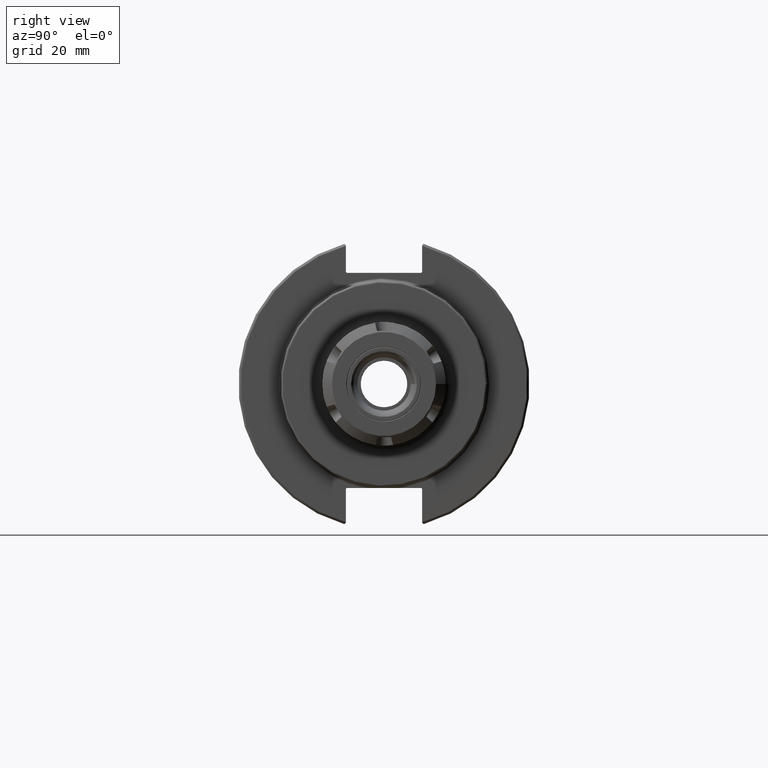
[diagram: clean part render]
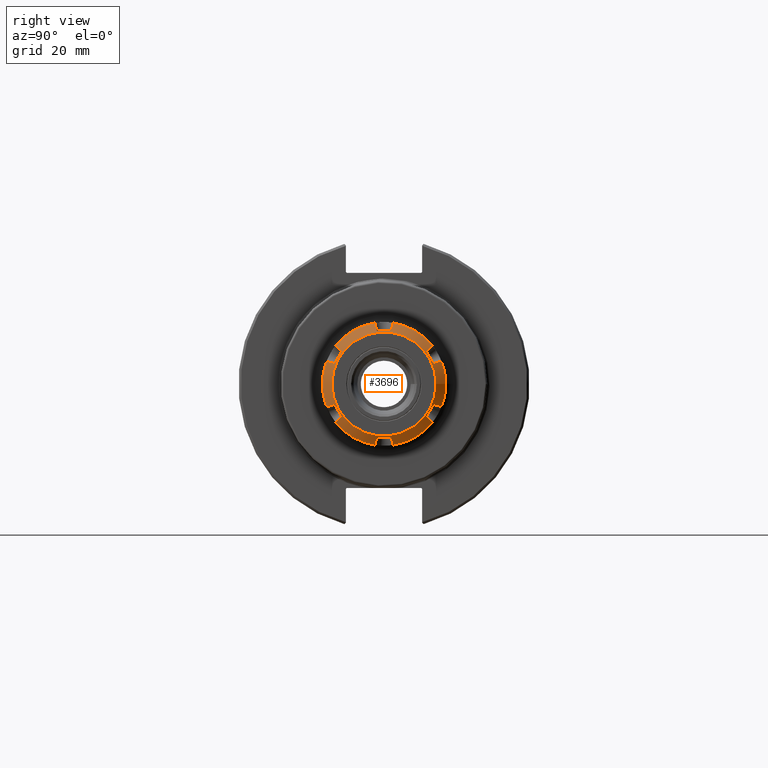
[diagram: same view with one face highlighted and labeled with its STEP entity id]
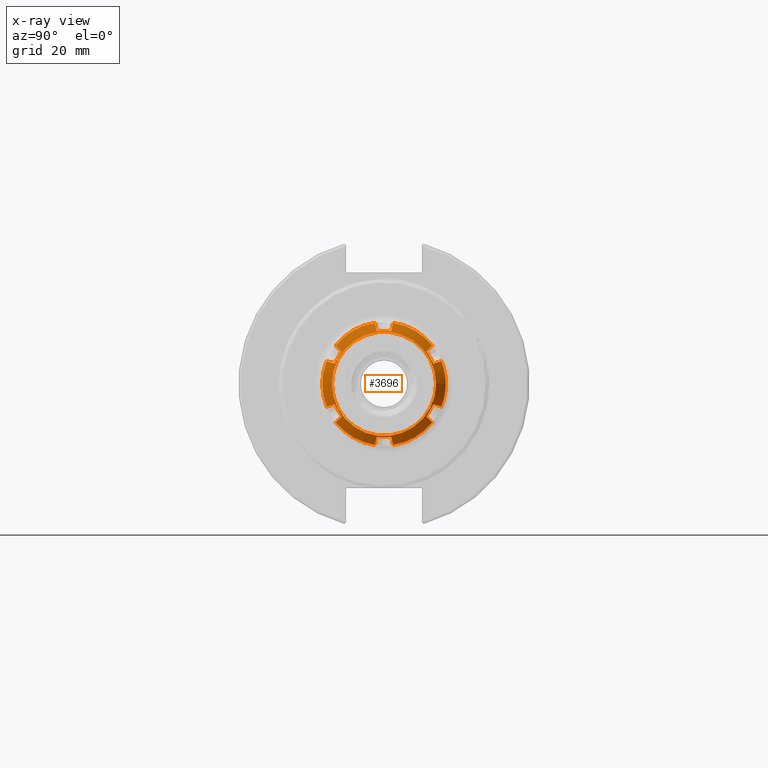
[diagram: x-ray of the same camera — body ghosted, the highlighted face saturated]
A machine part, right view. The second image highlights one B-rep face of the part: STEP entity #3696.
The next image is the same camera in x-ray: the body ghosted, the highlighted face saturated — about 0% of this face is hidden behind the body in this view.
In plain terms, the highlighted conical surface has half-angle 55 deg.
Its self-contained STEP definition (entity closure, byte-faithful):
#2644=CARTESIAN_POINT('',(0.013488532245051,0.658413935071814,-0.271593612044263));
#2645=VERTEX_POINT('',#2644);
#2646=CARTESIAN_POINT('',(0.013488532245051,0.564413935071814,-0.434406387955737));
#2647=VERTEX_POINT('',#2646);
#2648=CARTESIAN_POINT('',(0.013488532245051,0.658413935071814,-0.271593612044263));
#2649=CARTESIAN_POINT('',(0.004801687822576,0.611413935071814,-0.353));
#2650=CARTESIAN_POINT('',(0.013488532245051,0.564413935071814,-0.434406387955737));
#2658=(BOUNDED_CURVE()B_SPLINE_CURVE(2,(#2648,#2649,#2650),.UNSPECIFIED.,.F.,.U.)B_SPLINE_CURVE_WITH_KNOTS((3,3),(0.82459648433292,1.3483544344432),.UNSPECIFIED.)CURVE()GEOMETRIC_REPRESENTATION_ITEM()RATIONAL_B_SPLINE_CURVE((1.077046513658623,1.086551220052426,1.077046513658623))REPRESENTATION_ITEM(''));
#2659=EDGE_CURVE('',#2645,#2647,#2658,.T.);
#2692=CARTESIAN_POINT('',(0.09,0.643444973152068,-0.510725774291189));
#2693=VERTEX_POINT('',#2692);
#2694=CARTESIAN_POINT('',(0.013488532245051,0.564413935071814,-0.434406387955737));
#2695=CARTESIAN_POINT('',(0.048988927489935,0.601114194534895,-0.469847416551742));
#2696=CARTESIAN_POINT('',(0.09,0.643444973152068,-0.510725774291189));
#2704=(BOUNDED_CURVE()B_SPLINE_CURVE(2,(#2694,#2695,#2696),.UNSPECIFIED.,.F.,.U.)B_SPLINE_CURVE_WITH_KNOTS((3,3),(0.0,0.340061883942787),.UNSPECIFIED.)CURVE()GEOMETRIC_REPRESENTATION_ITEM()RATIONAL_B_SPLINE_CURVE((1.0,1.00257557690847,1.0))REPRESENTATION_ITEM(''));
#2705=EDGE_CURVE('',#2647,#2693,#2704,.T.);
#2769=CARTESIAN_POINT('',(0.09,0.764023981479681,-0.301876805541493));
#2770=VERTEX_POINT('',#2769);
#2771=CARTESIAN_POINT('',(0.09,0.764023981479681,-0.301876805541493));
#2772=CARTESIAN_POINT('',(0.048988927498252,0.707456895915225,-0.285656454770061));
#2773=CARTESIAN_POINT('',(0.013488532245051,0.658413935071814,-0.271593612044263));
#2781=(BOUNDED_CURVE()B_SPLINE_CURVE(2,(#2771,#2772,#2773),.UNSPECIFIED.,.F.,.U.)B_SPLINE_CURVE_WITH_KNOTS((3,3),(0.0,0.340061883942787),.UNSPECIFIED.)CURVE()GEOMETRIC_REPRESENTATION_ITEM()RATIONAL_B_SPLINE_CURVE((1.0,1.002575576871101,1.0))REPRESENTATION_ITEM(''));
#2782=EDGE_CURVE('',#2770,#2645,#2781,.T.);
#2800=CARTESIAN_POINT('',(0.013488532245051,0.094,-0.706));
#2801=VERTEX_POINT('',#2800);
#2802=CARTESIAN_POINT('',(0.013488532245051,-0.094,-0.706));
#2803=VERTEX_POINT('',#2802);
#2804=CARTESIAN_POINT('',(0.013488532245051,0.094,-0.706));
#2805=CARTESIAN_POINT('',(0.004801687822576,1.857657E-016,-0.706));
#2806=CARTESIAN_POINT('',(0.013488532245051,-0.094,-0.706));
#2814=(BOUNDED_CURVE()B_SPLINE_CURVE(2,(#2804,#2805,#2806),.UNSPECIFIED.,.F.,.U.)B_SPLINE_CURVE_WITH_KNOTS((3,3),(0.82459648433292,1.348354434443201),.UNSPECIFIED.)CURVE()GEOMETRIC_REPRESENTATION_ITEM()RATIONAL_B_SPLINE_CURVE((1.077046513658622,1.086551220052426,1.077046513658622))REPRESENTATION_ITEM(''));
#2815=EDGE_CURVE('',#2801,#2803,#2814,.T.);
#2848=CARTESIAN_POINT('',(0.09,-0.120579008327613,-0.812602579832681));
#2849=VERTEX_POINT('',#2848);
#2850=CARTESIAN_POINT('',(0.013488532245051,-0.094,-0.706));
#2851=CARTESIAN_POINT('',(0.048988927495278,-0.106342701370706,-0.755503871325955));
#2852=CARTESIAN_POINT('',(0.09,-0.120579008327613,-0.812602579832681));
#2860=(BOUNDED_CURVE()B_SPLINE_CURVE(2,(#2850,#2851,#2852),.UNSPECIFIED.,.F.,.U.)B_SPLINE_CURVE_WITH_KNOTS((3,3),(0.0,0.340061883942787),.UNSPECIFIED.)CURVE()GEOMETRIC_REPRESENTATION_ITEM()RATIONAL_B_SPLINE_CURVE((1.0,1.002575576888377,1.0))REPRESENTATION_ITEM(''));
#2861=EDGE_CURVE('',#2803,#2849,#2860,.T.);
#2925=CARTESIAN_POINT('',(0.09,0.120579008327613,-0.812602579832682));
#2926=VERTEX_POINT('',#2925);
#2927=CARTESIAN_POINT('',(0.09,0.120579008327613,-0.812602579832681));
#2928=CARTESIAN_POINT('',(0.048988927497536,0.106342701371491,-0.755503871329102));
#2929=CARTESIAN_POINT('',(0.013488532245051,0.094,-0.706));
#2937=(BOUNDED_CURVE()B_SPLINE_CURVE(2,(#2927,#2928,#2929),.UNSPECIFIED.,.F.,.U.)B_SPLINE_CURVE_WITH_KNOTS((3,3),(0.0,0.340061883942787),.UNSPECIFIED.)CURVE()GEOMETRIC_REPRESENTATION_ITEM()RATIONAL_B_SPLINE_CURVE((1.0,1.002575576879469,1.0))REPRESENTATION_ITEM(''));
#2938=EDGE_CURVE('',#2926,#2801,#2937,.T.);
#2956=CARTESIAN_POINT('',(0.013488532245051,-0.564413935071814,-0.434406387955737));
#2957=VERTEX_POINT('',#2956);
#2958=CARTESIAN_POINT('',(0.013488532245051,-0.658413935071814,-0.271593612044263));
#2959=VERTEX_POINT('',#2958);
#2960=CARTESIAN_POINT('',(0.013488532245051,-0.564413935071814,-0.434406387955737));
#2961=CARTESIAN_POINT('',(0.004801687822576,-0.611413935071814,-0.353));
#2962=CARTESIAN_POINT('',(0.013488532245051,-0.658413935071814,-0.271593612044263));
#2970=(BOUNDED_CURVE()B_SPLINE_CURVE(2,(#2960,#2961,#2962),.UNSPECIFIED.,.F.,.U.)B_SPLINE_CURVE_WITH_KNOTS((3,3),(0.824596484332921,1.348354434443202),.UNSPECIFIED.)CURVE()GEOMETRIC_REPRESENTATION_ITEM()RATIONAL_B_SPLINE_CURVE((1.077046513658622,1.086551220052425,1.077046513658622))REPRESENTATION_ITEM(''));
#2971=EDGE_CURVE('',#2957,#2959,#2970,.T.);
#3004=CARTESIAN_POINT('',(0.09,-0.764023981479681,-0.301876805541492));
#3005=VERTEX_POINT('',#3004);
#3006=CARTESIAN_POINT('',(0.013488532245051,-0.658413935071814,-0.271593612044263));
#3007=CARTESIAN_POINT('',(0.048988927492729,-0.707456895907601,-0.285656454767875));
#3008=CARTESIAN_POINT('',(0.09,-0.764023981479681,-0.301876805541492));
#3016=(BOUNDED_CURVE()B_SPLINE_CURVE(2,(#3006,#3007,#3008),.UNSPECIFIED.,.F.,.U.)B_SPLINE_CURVE_WITH_KNOTS((3,3),(0.0,0.340061883942787),.UNSPECIFIED.)CURVE()GEOMETRIC_REPRESENTATION_ITEM()RATIONAL_B_SPLINE_CURVE((1.0,1.002575576897637,1.0))REPRESENTATION_ITEM(''));
#3017=EDGE_CURVE('',#2959,#3005,#3016,.T.);
#3081=CARTESIAN_POINT('',(0.09,-0.643444973152068,-0.510725774291189));
#3082=VERTEX_POINT('',#3081);
#3083=CARTESIAN_POINT('',(0.09,-0.643444973152068,-0.510725774291189));
#3084=CARTESIAN_POINT('',(0.048988927482105,-0.601114194526807,-0.469847416543931));
#3085=CARTESIAN_POINT('',(0.013488532245051,-0.564413935071814,-0.434406387955737));
#3093=(BOUNDED_CURVE()B_SPLINE_CURVE(2,(#3083,#3084,#3085),.UNSPECIFIED.,.F.,.U.)B_SPLINE_CURVE_WITH_KNOTS((3,3),(0.0,0.340061883942787),.UNSPECIFIED.)CURVE()GEOMETRIC_REPRESENTATION_ITEM()RATIONAL_B_SPLINE_CURVE((1.0,1.002575576943949,1.0))REPRESENTATION_ITEM(''));
#3094=EDGE_CURVE('',#3082,#2957,#3093,.T.);
#3112=CARTESIAN_POINT('',(0.013488532245051,-0.658413935071814,0.271593612044263));
#3113=VERTEX_POINT('',#3112);
#3114=CARTESIAN_POINT('',(0.013488532245051,-0.564413935071814,0.434406387955737));
#3115=VERTEX_POINT('',#3114);
#3116=CARTESIAN_POINT('',(0.013488532245051,-0.658413935071814,0.271593612044263));
#3117=CARTESIAN_POINT('',(0.004801687822576,-0.611413935071814,0.353));
#3118=CARTESIAN_POINT('',(0.013488532245051,-0.564413935071814,0.434406387955737));
#3126=(BOUNDED_CURVE()B_SPLINE_CURVE(2,(#3116,#3117,#3118),.UNSPECIFIED.,.F.,.U.)B_SPLINE_CURVE_WITH_KNOTS((3,3),(0.824596484332921,1.348354434443201),.UNSPECIFIED.)CURVE()GEOMETRIC_REPRESENTATION_ITEM()RATIONAL_B_SPLINE_CURVE((1.077046513658621,1.086551220052424,1.07704651365862))REPRESENTATION_ITEM(''));
#3127=EDGE_CURVE('',#3113,#3115,#3126,.T.);
#3160=CARTESIAN_POINT('',(0.09,-0.643444973152068,0.510725774291189));
#3161=VERTEX_POINT('',#3160);
#3162=CARTESIAN_POINT('',(0.013488532245051,-0.564413935071814,0.434406387955737));
#3163=CARTESIAN_POINT('',(0.048988927492239,-0.601114194537275,0.46984741655404));
#3164=CARTESIAN_POINT('',(0.09,-0.643444973152068,0.510725774291189));
#3172=(BOUNDED_CURVE()B_SPLINE_CURVE(2,(#3162,#3163,#3164),.UNSPECIFIED.,.F.,.U.)B_SPLINE_CURVE_WITH_KNOTS((3,3),(0.0,0.340061883942787),.UNSPECIFIED.)CURVE()GEOMETRIC_REPRESENTATION_ITEM()RATIONAL_B_SPLINE_CURVE((1.0,1.002575576900996,1.0))REPRESENTATION_ITEM(''));
#3173=EDGE_CURVE('',#3115,#3161,#3172,.T.);
#3237=CARTESIAN_POINT('',(0.09,-0.764023981479681,0.301876805541492));
#3238=VERTEX_POINT('',#3237);
#3239=CARTESIAN_POINT('',(0.09,-0.764023981479681,0.301876805541492));
#3240=CARTESIAN_POINT('',(0.04898892750456,-0.707456895923934,0.285656454772558));
#3241=CARTESIAN_POINT('',(0.013488532245051,-0.658413935071814,0.271593612044263));
#3249=(BOUNDED_CURVE()B_SPLINE_CURVE(2,(#3239,#3240,#3241),.UNSPECIFIED.,.F.,.U.)B_SPLINE_CURVE_WITH_KNOTS((3,3),(0.0,0.340061883942787),.UNSPECIFIED.)CURVE()GEOMETRIC_REPRESENTATION_ITEM()RATIONAL_B_SPLINE_CURVE((1.0,1.002575576858716,1.0))REPRESENTATION_ITEM(''));
#3250=EDGE_CURVE('',#3238,#3113,#3249,.T.);
#3268=CARTESIAN_POINT('',(0.013488532245051,0.564413935071814,0.434406387955737));
#3269=VERTEX_POINT('',#3268);
#3270=CARTESIAN_POINT('',(0.013488532245051,0.658413935071814,0.271593612044262));
#3271=VERTEX_POINT('',#3270);
#3272=CARTESIAN_POINT('',(0.013488532245051,0.564413935071814,0.434406387955737));
#3273=CARTESIAN_POINT('',(0.004801687822576,0.611413935071814,0.353));
#3274=CARTESIAN_POINT('',(0.013488532245051,0.658413935071814,0.271593612044262));
#3282=(BOUNDED_CURVE()B_SPLINE_CURVE(2,(#3272,#3273,#3274),.UNSPECIFIED.,.F.,.U.)B_SPLINE_CURVE_WITH_KNOTS((3,3),(0.82459648433292,1.3483544344432),.UNSPECIFIED.)CURVE()GEOMETRIC_REPRESENTATION_ITEM()RATIONAL_B_SPLINE_CURVE((1.077046513658621,1.086551220052425,1.077046513658621))REPRESENTATION_ITEM(''));
#3283=EDGE_CURVE('',#3269,#3271,#3282,.T.);
#3316=CARTESIAN_POINT('',(0.09,0.764023981479681,0.301876805541492));
#3317=VERTEX_POINT('',#3316);
#3318=CARTESIAN_POINT('',(0.013488532245051,0.658413935071814,0.271593612044262));
#3319=CARTESIAN_POINT('',(0.048988927503607,0.707456895922618,0.28565645477218));
#3320=CARTESIAN_POINT('',(0.09,0.764023981479681,0.301876805541492));
#3328=(BOUNDED_CURVE()B_SPLINE_CURVE(2,(#3318,#3319,#3320),.UNSPECIFIED.,.F.,.U.)B_SPLINE_CURVE_WITH_KNOTS((3,3),(0.0,0.340061883942786),.UNSPECIFIED.)CURVE()GEOMETRIC_REPRESENTATION_ITEM()RATIONAL_B_SPLINE_CURVE((1.0,1.002575576856022,1.0))REPRESENTATION_ITEM(''));
#3329=EDGE_CURVE('',#3271,#3317,#3328,.T.);
#3393=CARTESIAN_POINT('',(0.09,0.643444973152068,0.510725774291189));
#3394=VERTEX_POINT('',#3393);
#3395=CARTESIAN_POINT('',(0.09,0.643444973152068,0.510725774291189));
#3396=CARTESIAN_POINT('',(0.048988927489963,0.601114194534924,0.469847416551769));
#3397=CARTESIAN_POINT('',(0.013488532245051,0.564413935071814,0.434406387955737));
#3405=(BOUNDED_CURVE()B_SPLINE_CURVE(2,(#3395,#3396,#3397),.UNSPECIFIED.,.F.,.U.)B_SPLINE_CURVE_WITH_KNOTS((3,3),(0.0,0.340061883942787),.UNSPECIFIED.)CURVE()GEOMETRIC_REPRESENTATION_ITEM()RATIONAL_B_SPLINE_CURVE((1.0,1.002575576920623,1.0))REPRESENTATION_ITEM(''));
#3406=EDGE_CURVE('',#3394,#3269,#3405,.T.);
#3438=CARTESIAN_POINT('',(0.09,0.0,0.0));
#3439=DIRECTION('',(1.0,0.0,0.0));
#3440=DIRECTION('',(0.0,1.0,0.0));
#3441=AXIS2_PLACEMENT_3D('',#3438,#3439,#3440);
#3442=CIRCLE('',#3441,0.8215);
#3443=EDGE_CURVE('',#2770,#3317,#3442,.T.);
#3448=CARTESIAN_POINT('',(0.09,0.120579008327613,0.812602579832681));
#3449=VERTEX_POINT('',#3448);
#3450=CARTESIAN_POINT('',(0.09,0.0,0.0));
#3451=DIRECTION('',(1.0,0.0,0.0));
#3452=DIRECTION('',(0.0,1.0,0.0));
#3453=AXIS2_PLACEMENT_3D('',#3450,#3451,#3452);
#3454=CIRCLE('',#3453,0.8215);
#3455=EDGE_CURVE('',#3394,#3449,#3454,.T.);
#3488=CARTESIAN_POINT('',(0.09,-0.120579008327613,0.812602579832682));
#3489=VERTEX_POINT('',#3488);
#3496=CARTESIAN_POINT('',(0.09,0.0,0.0));
#3497=DIRECTION('',(1.0,0.0,0.0));
#3498=DIRECTION('',(0.0,1.0,0.0));
#3499=AXIS2_PLACEMENT_3D('',#3496,#3497,#3498);
#3500=CIRCLE('',#3499,0.8215);
#3501=EDGE_CURVE('',#3489,#3161,#3500,.T.);
#3506=CARTESIAN_POINT('',(0.09,0.0,0.0));
#3507=DIRECTION('',(1.0,0.0,0.0));
#3508=DIRECTION('',(0.0,1.0,0.0));
#3509=AXIS2_PLACEMENT_3D('',#3506,#3507,#3508);
#3510=CIRCLE('',#3509,0.8215);
#3511=EDGE_CURVE('',#3238,#3005,#3510,.T.);
#3516=CARTESIAN_POINT('',(0.09,0.0,0.0));
#3517=DIRECTION('',(1.0,0.0,0.0));
#3518=DIRECTION('',(0.0,1.0,0.0));
#3519=AXIS2_PLACEMENT_3D('',#3516,#3517,#3518);
#3520=CIRCLE('',#3519,0.8215);
#3521=EDGE_CURVE('',#3082,#2849,#3520,.T.);
#3526=CARTESIAN_POINT('',(0.09,0.0,0.0));
#3527=DIRECTION('',(1.0,0.0,0.0));
#3528=DIRECTION('',(0.0,1.0,0.0));
#3529=AXIS2_PLACEMENT_3D('',#3526,#3527,#3528);
#3530=CIRCLE('',#3529,0.8215);
#3531=EDGE_CURVE('',#2926,#2693,#3530,.T.);
#3541=CARTESIAN_POINT('',(0.013488532245051,-0.094,0.706));
#3542=VERTEX_POINT('',#3541);
#3543=CARTESIAN_POINT('',(0.013488532245051,0.094,0.706));
#3544=VERTEX_POINT('',#3543);
#3545=CARTESIAN_POINT('',(0.013488532245051,-0.094,0.706));
#3546=CARTESIAN_POINT('',(0.004801687822575,-1.966931E-016,0.706));
#3547=CARTESIAN_POINT('',(0.013488532245051,0.094,0.706));
#3555=(BOUNDED_CURVE()B_SPLINE_CURVE(2,(#3545,#3546,#3547),.UNSPECIFIED.,.F.,.U.)B_SPLINE_CURVE_WITH_KNOTS((3,3),(0.824596484332919,1.348354434443201),.UNSPECIFIED.)CURVE()GEOMETRIC_REPRESENTATION_ITEM()RATIONAL_B_SPLINE_CURVE((1.077046513658623,1.086551220052426,1.077046513658622))REPRESENTATION_ITEM(''));
#3556=EDGE_CURVE('',#3542,#3544,#3555,.T.);
#3589=CARTESIAN_POINT('',(0.013488532245051,0.094,0.706));
#3590=CARTESIAN_POINT('',(0.048988927481718,0.106342701365995,0.755503871307058));
#3591=CARTESIAN_POINT('',(0.09,0.120579008327613,0.812602579832681));
#3599=(BOUNDED_CURVE()B_SPLINE_CURVE(2,(#3589,#3590,#3591),.UNSPECIFIED.,.F.,.U.)B_SPLINE_CURVE_WITH_KNOTS((3,3),(0.064477313908799,0.4000538741211),.UNSPECIFIED.)CURVE()GEOMETRIC_REPRESENTATION_ITEM()RATIONAL_B_SPLINE_CURVE((1.000990179898273,1.003071819221106,1.0))REPRESENTATION_ITEM(''));
#3600=EDGE_CURVE('',#3544,#3449,#3599,.T.);
#3635=CARTESIAN_POINT('',(0.09,-0.120579008327613,0.812602579832681));
#3636=CARTESIAN_POINT('',(0.048988927493886,-0.106342701370223,0.755503871324019));
#3637=CARTESIAN_POINT('',(0.013488532245051,-0.094,0.706));
#3645=(BOUNDED_CURVE()B_SPLINE_CURVE(2,(#3635,#3636,#3637),.UNSPECIFIED.,.F.,.U.)B_SPLINE_CURVE_WITH_KNOTS((3,3),(0.0,0.335576560231471),.UNSPECIFIED.)CURVE()GEOMETRIC_REPRESENTATION_ITEM()RATIONAL_B_SPLINE_CURVE((1.0,1.00307181916717,1.000990179880592))REPRESENTATION_ITEM(''));
#3646=EDGE_CURVE('',#3489,#3542,#3645,.T.);
#3654=CARTESIAN_POINT('',(0.045,0.0,0.0));
#3655=DIRECTION('',(1.0,0.0,0.0));
#3656=DIRECTION('',(0.0,1.0,0.0));
#3657=AXIS2_PLACEMENT_3D('',#3654,#3655,#3656);
#3658=CONICAL_SURFACE('',#3657,0.757233339696605,55.000000000000014);
#3659=ORIENTED_EDGE('',*,*,#2705,.T.);
#3660=ORIENTED_EDGE('',*,*,#3531,.F.);
#3661=ORIENTED_EDGE('',*,*,#2938,.T.);
#3662=ORIENTED_EDGE('',*,*,#2815,.T.);
#3663=ORIENTED_EDGE('',*,*,#2861,.T.);
#3664=ORIENTED_EDGE('',*,*,#3521,.F.);
#3665=ORIENTED_EDGE('',*,*,#3094,.T.);
#3666=ORIENTED_EDGE('',*,*,#2971,.T.);
#3667=ORIENTED_EDGE('',*,*,#3017,.T.);
#3668=ORIENTED_EDGE('',*,*,#3511,.F.);
#3669=ORIENTED_EDGE('',*,*,#3250,.T.);
#3670=ORIENTED_EDGE('',*,*,#3127,.T.);
#3671=ORIENTED_EDGE('',*,*,#3173,.T.);
#3672=ORIENTED_EDGE('',*,*,#3501,.F.);
#3673=ORIENTED_EDGE('',*,*,#3646,.T.);
#3674=ORIENTED_EDGE('',*,*,#3556,.T.);
#3675=ORIENTED_EDGE('',*,*,#3600,.T.);
#3676=ORIENTED_EDGE('',*,*,#3455,.F.);
#3677=ORIENTED_EDGE('',*,*,#3406,.T.);
#3678=ORIENTED_EDGE('',*,*,#3283,.T.);
#3679=ORIENTED_EDGE('',*,*,#3329,.T.);
#3680=ORIENTED_EDGE('',*,*,#3443,.F.);
#3681=ORIENTED_EDGE('',*,*,#2782,.T.);
#3682=ORIENTED_EDGE('',*,*,#2659,.T.);
#3683=EDGE_LOOP('',(#3659,#3660,#3661,#3662,#3663,#3664,#3665,#3666,#3667,#3668,#3669,#3670,#3671,#3672,#3673,#3674,#3675,#3676,#3677,#3678,#3679,#3680,#3681,#3682));
#3684=FACE_OUTER_BOUND('',#3683,.T.);
#3685=CARTESIAN_POINT('',(-2.120597E-016,0.69296667939321,0.0));
#3686=VERTEX_POINT('',#3685);
#3687=CARTESIAN_POINT('',(-1.748383E-016,0.0,0.0));
#3688=DIRECTION('',(1.0,0.0,0.0));
#3689=DIRECTION('',(0.0,1.0,0.0));
#3690=AXIS2_PLACEMENT_3D('',#3687,#3688,#3689);
#3691=CIRCLE('',#3690,0.69296667939321);
#3692=EDGE_CURVE('',#3686,#3686,#3691,.T.);
#3693=ORIENTED_EDGE('',*,*,#3692,.T.);
#3694=EDGE_LOOP('',(#3693));
#3695=FACE_BOUND('',#3694,.T.);
#3696=ADVANCED_FACE('',(#3684,#3695),#3658,.T.);